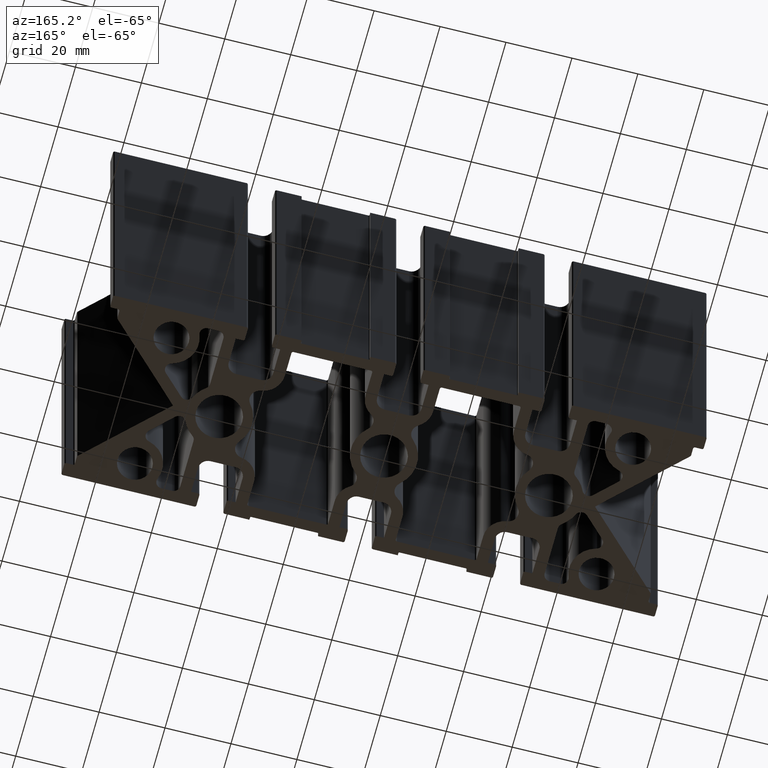
[diagram: clean part render]
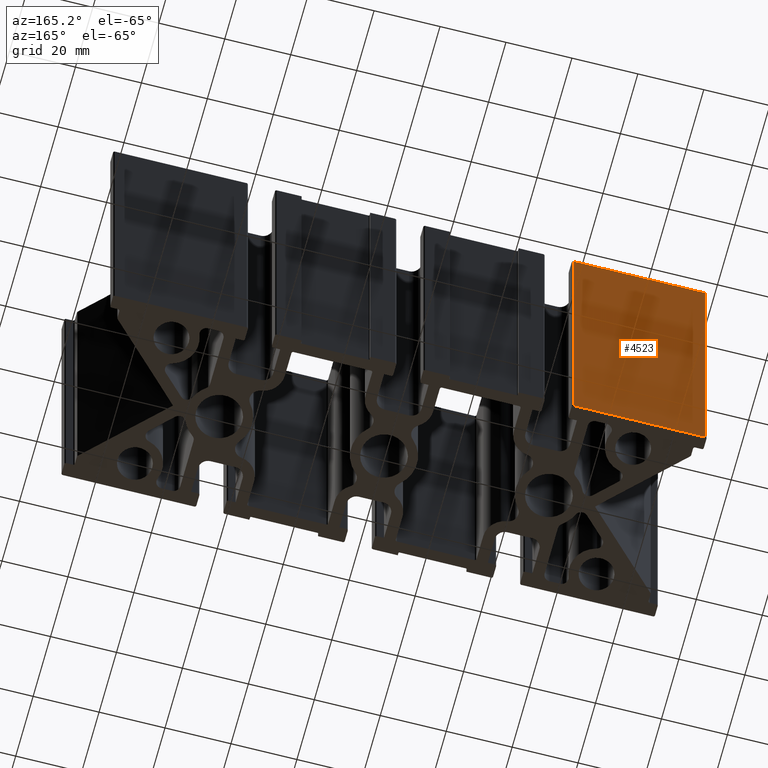
[diagram: same view with one face highlighted and labeled with its STEP entity id]
A machine part, auxiliary view. The second image highlights one B-rep face of the part: STEP entity #4523.
In plain terms, the highlighted planar face has unit normal (-0, -1, 0).
Its self-contained STEP definition (entity closure, byte-faithful):
#99=PLANE('',#4965);
#293=FACE_OUTER_BOUND('',#544,.T.);
#544=EDGE_LOOP('',(#3662,#3663,#3664,#3665));
#718=LINE('',#6729,#1152);
#940=LINE('',#7491,#1374);
#941=LINE('',#7495,#1375);
#942=LINE('',#7496,#1376);
#1152=VECTOR('',#5309,39.9);
#1374=VECTOR('',#6077,100.);
#1375=VECTOR('',#6082,100.);
#1376=VECTOR('',#6083,39.9);
#1866=VERTEX_POINT('',#6726);
#1867=VERTEX_POINT('',#6728);
#2134=VERTEX_POINT('',#7490);
#2135=VERTEX_POINT('',#7494);
#2342=EDGE_CURVE('',#1867,#1866,#718,.T.);
#2720=EDGE_CURVE('',#2134,#1867,#940,.T.);
#2722=EDGE_CURVE('',#1866,#2135,#941,.T.);
#2723=EDGE_CURVE('',#2134,#2135,#942,.T.);
#3662=ORIENTED_EDGE('',*,*,#2720,.T.);
#3663=ORIENTED_EDGE('',*,*,#2342,.T.);
#3664=ORIENTED_EDGE('',*,*,#2722,.T.);
#3665=ORIENTED_EDGE('',*,*,#2723,.F.);
#4523=ADVANCED_FACE('',(#293),#99,.F.);
#4965=AXIS2_PLACEMENT_3D('',#7493,#6080,#6081);
#5309=DIRECTION('',(1.,-2.17158537823992E-16,0.));
#6077=DIRECTION('',(0.,0.,1.));
#6080=DIRECTION('center_axis',(-2.17158537823992E-16,-1.,0.));
#6081=DIRECTION('ref_axis',(1.,-3.5527136788005E-16,0.));
#6082=DIRECTION('',(0.,0.,-1.));
#6083=DIRECTION('',(1.,-2.17158537823992E-16,0.));
#6726=CARTESIAN_POINT('',(-49.6,30.,100.));
#6728=CARTESIAN_POINT('',(-89.5,30.,100.));
#6729=CARTESIAN_POINT('',(-90.,30.,100.));
#7490=CARTESIAN_POINT('',(-89.5,30.,0.));
#7491=CARTESIAN_POINT('',(-89.5,30.,0.));
#7493=CARTESIAN_POINT('Origin',(-90.,30.,0.));
#7494=CARTESIAN_POINT('',(-49.6,30.,0.));
#7495=CARTESIAN_POINT('',(-49.6,30.,0.));
#7496=CARTESIAN_POINT('',(-90.,30.,0.));